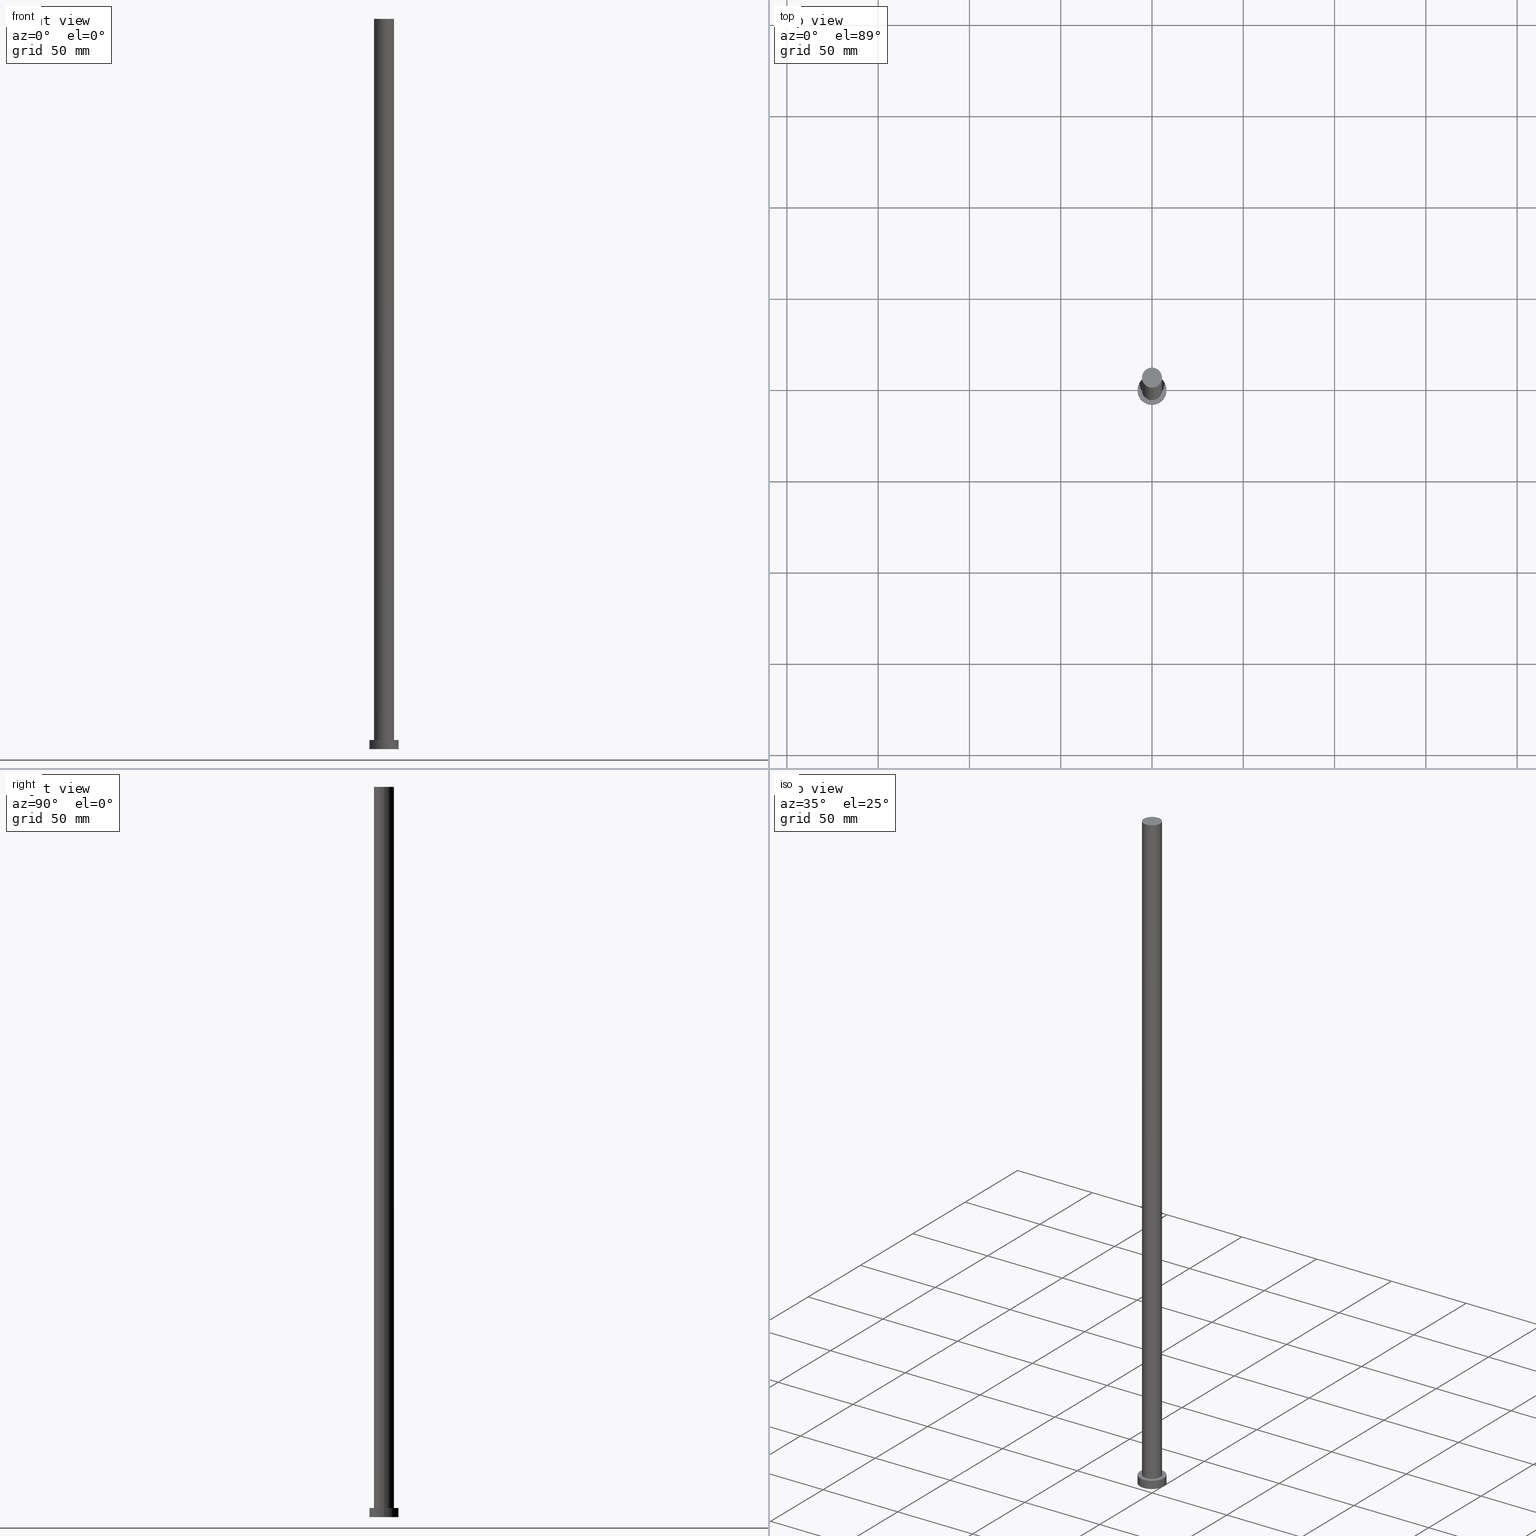
[diagram: canonical four-view strip — front | top / right | iso, engineering-drawing reading convention]
A machine part, canonical four-view strip (front | top / right | iso — engineering-drawing reading convention). The complete STEP part file that produces these views, byte-faithful:
ISO-10303-21;
HEADER;
FILE_DESCRIPTION (( 'STEP AP203' ),
    '1' );
FILE_NAME ('6780.STEP',
    '2023-02-13T11:09:37',
    ( '' ),
    ( '' ),
    'SwSTEP 2.0',
    'SolidWorks 2019',
    '' );
FILE_SCHEMA (( 'CONFIG_CONTROL_DESIGN' ));
ENDSEC;

DATA;
#1 = SHAPE_DEFINITION_REPRESENTATION ( #113, #229 ) ;
#2 = EDGE_CURVE ( 'NONE', #168, #225, #170, .T. ) ;
#3 = CARTESIAN_POINT ( 'NONE',  ( -8.000000000000000000, 0.000000000000000000, 0.000000000000000000 ) ) ;
#4 = ADVANCED_FACE ( 'NONE', ( #145 ), #27, .F. ) ;
#5 = AXIS2_PLACEMENT_3D ( 'NONE', #32, #247, #181 ) ;
#6 = CARTESIAN_POINT ( 'NONE',  ( 0.000000000000000000, 0.000000000000000000, 5.000000000000000000 ) ) ;
#7 = DIRECTION ( 'NONE',  ( -1.000000000000000000, 0.000000000000000000, 0.000000000000000000 ) ) ;
#8 = CLOSED_SHELL ( 'NONE', ( #121, #240, #110, #51, #4, #250, #236 ) ) ;
#9 = AXIS2_PLACEMENT_3D ( 'NONE', #92, #136, #30 ) ;
#10 = CC_DESIGN_PERSON_AND_ORGANIZATION_ASSIGNMENT ( #217, #177, ( #69 ) ) ;
#11 = EDGE_LOOP ( 'NONE', ( #48, #232, #163, #193 ) ) ;
#12 = COORDINATED_UNIVERSAL_TIME_OFFSET ( 1, 0, .AHEAD. ) ;
#13 = MANIFOLD_SOLID_BREP ( 'P�idat vysunut�m3', #8 ) ;
#14 = VERTEX_POINT ( 'NONE', #224 ) ;
#15 = DATE_TIME_ROLE ( 'classification_date' ) ;
#16 = DATE_AND_TIME ( #55, #146 ) ;
#17 = CARTESIAN_POINT ( 'NONE',  ( 8.000000000000000000, 9.797174393178825657E-16, 5.000000000000000000 ) ) ;
#18 = APPROVAL_ROLE ( '' ) ;
#19 = CARTESIAN_POINT ( 'NONE',  ( -5.500000000000000000, 0.000000000000000000, 400.0000000000000000 ) ) ;
#20 = APPROVAL ( #142, 'NEUR�EN�' ) ;
#21 = DIRECTION ( 'NONE',  ( 0.000000000000000000, 0.000000000000000000, 1.000000000000000000 ) ) ;
#22 = COORDINATED_UNIVERSAL_TIME_OFFSET ( 1, 0, .AHEAD. ) ;
#23 = CARTESIAN_POINT ( 'NONE',  ( 0.000000000000000000, 0.000000000000000000, 400.0000000000000000 ) ) ;
#24 = ORIENTED_EDGE ( 'NONE', *, *, #29, .F. ) ;
#25 = EDGE_CURVE ( 'NONE', #225, #168, #71, .T. ) ;
#26 = AXIS2_PLACEMENT_3D ( 'NONE', #194, #169, #133 ) ;
#27 = PLANE ( 'NONE',  #127 ) ;
#28 = DIRECTION ( 'NONE',  ( 1.000000000000000000, 0.000000000000000000, 0.000000000000000000 ) ) ;
#29 = EDGE_CURVE ( 'NONE', #34, #213, #74, .T. ) ;
#30 = DIRECTION ( 'NONE',  ( 1.000000000000000000, 0.000000000000000000, 0.000000000000000000 ) ) ;
#31 = CARTESIAN_POINT ( 'NONE',  ( 0.000000000000000000, 0.000000000000000000, 400.0000000000000000 ) ) ;
#32 = CARTESIAN_POINT ( 'NONE',  ( 0.000000000000000000, 0.000000000000000000, 0.000000000000000000 ) ) ;
#33 = PERSON_AND_ORGANIZATION_ROLE ( 'design_supplier' ) ;
#34 = VERTEX_POINT ( 'NONE', #3 ) ;
#35 = APPLICATION_PROTOCOL_DEFINITION ( 'international standard', 'config_control_design', 1994, #109 ) ;
#36 = PERSON_AND_ORGANIZATION ( #153, #175 ) ;
#37 = VERTEX_POINT ( 'NONE', #172 ) ;
#38 = PERSON_AND_ORGANIZATION ( #153, #175 ) ;
#39 = ORIENTED_EDGE ( 'NONE', *, *, #94, .F. ) ;
#40 = APPROVAL_DATE_TIME ( #161, #59 ) ;
#41 = CC_DESIGN_SECURITY_CLASSIFICATION ( #237, ( #208 ) ) ;
#42 = CIRCLE ( 'NONE', #197, 8.000000000000000000 ) ;
#43 =( NAMED_UNIT ( * ) PLANE_ANGLE_UNIT ( ) SI_UNIT ( $, .RADIAN. ) );
#44 = EDGE_CURVE ( 'NONE', #254, #165, #242, .T. ) ;
#45 = CARTESIAN_POINT ( 'NONE',  ( -8.000000000000000000, 0.000000000000000000, 5.000000000000000000 ) ) ;
#46 = ORIENTED_EDGE ( 'NONE', *, *, #2, .F. ) ;
#47 = FACE_OUTER_BOUND ( 'NONE', #11, .T. ) ;
#48 = ORIENTED_EDGE ( 'NONE', *, *, #211, .F. ) ;
#49 = DIRECTION ( 'NONE',  ( 0.000000000000000000, 0.000000000000000000, 1.000000000000000000 ) ) ;
#50 = DIRECTION ( 'NONE',  ( -0.000000000000000000, -0.000000000000000000, -1.000000000000000000 ) ) ;
#51 = ADVANCED_FACE ( 'NONE', ( #241, #231 ), #243, .T. ) ;
#52 = DIRECTION ( 'NONE',  ( 1.000000000000000000, 0.000000000000000000, 0.000000000000000000 ) ) ;
#53 = CYLINDRICAL_SURFACE ( 'NONE', #235, 5.500000000000000000 ) ;
#54 = VECTOR ( 'NONE', #103, 1000.000000000000000 ) ;
#55 = CALENDAR_DATE ( 2023, 13, 2 ) ;
#56 = CYLINDRICAL_SURFACE ( 'NONE', #135, 8.000000000000000000 ) ;
#57 = DATE_TIME_ROLE ( 'creation_date' ) ;
#58 = VECTOR ( 'NONE', #148, 1000.000000000000000 ) ;
#59 = APPROVAL ( #164, 'NEUR�EN�' ) ;
#60 = DIRECTION ( 'NONE',  ( 1.000000000000000000, 0.000000000000000000, 0.000000000000000000 ) ) ;
#61 = DIRECTION ( 'NONE',  ( 0.000000000000000000, 0.000000000000000000, 1.000000000000000000 ) ) ;
#62 = APPROVAL_PERSON_ORGANIZATION ( #120, #20, #18 ) ;
#63 = CARTESIAN_POINT ( 'NONE',  ( 0.000000000000000000, 0.000000000000000000, 5.000000000000000000 ) ) ;
#64 = DIRECTION ( 'NONE',  ( -0.000000000000000000, -0.000000000000000000, -1.000000000000000000 ) ) ;
#65 = CARTESIAN_POINT ( 'NONE',  ( 0.000000000000000000, 0.000000000000000000, 400.0000000000000000 ) ) ;
#66 = DIRECTION ( 'NONE',  ( 0.000000000000000000, 0.000000000000000000, 1.000000000000000000 ) ) ;
#67 = CC_DESIGN_APPROVAL ( #59, ( #237 ) ) ;
#68 = DIRECTION ( 'NONE',  ( 0.000000000000000000, 0.000000000000000000, 1.000000000000000000 ) ) ;
#69 = PRODUCT_DEFINITION ( 'NEZN�M�', '', #208, #201 ) ;
#70 = LINE ( 'NONE', #198, #58 ) ;
#71 = CIRCLE ( 'NONE', #218, 5.500000000000000000 ) ;
#72 = APPROVAL_STATUS ( 'not_yet_approved' ) ;
#73 = FACE_OUTER_BOUND ( 'NONE', #207, .T. ) ;
#74 = CIRCLE ( 'NONE', #116, 8.000000000000000000 ) ;
#75 = CIRCLE ( 'NONE', #9, 5.500000000000000000 ) ;
#76 = COORDINATED_UNIVERSAL_TIME_OFFSET ( 1, 0, .AHEAD. ) ;
#77 = CARTESIAN_POINT ( 'NONE',  ( 5.500000000000000000, 6.735557395310441037E-16, 400.0000000000000000 ) ) ;
#78 = COORDINATED_UNIVERSAL_TIME_OFFSET ( 1, 0, .AHEAD. ) ;
#79 = APPROVAL_PERSON_ORGANIZATION ( #38, #131, #124 ) ;
#80 = ORIENTED_EDGE ( 'NONE', *, *, #104, .F. ) ;
#81 = CARTESIAN_POINT ( 'NONE',  ( -8.000000000000000000, 0.000000000000000000, 5.000000000000000000 ) ) ;
#82 = ORIENTED_EDGE ( 'NONE', *, *, #44, .F. ) ;
#83 = CC_DESIGN_APPROVAL ( #20, ( #69 ) ) ;
#84 = ORIENTED_EDGE ( 'NONE', *, *, #190, .T. ) ;
#85 = FACE_OUTER_BOUND ( 'NONE', #140, .T. ) ;
#86 = ORIENTED_EDGE ( 'NONE', *, *, #94, .T. ) ;
#87 = APPLICATION_CONTEXT ( 'configuration controlled 3d designs of mechanical parts and assemblies' ) ;
#88 = DIRECTION ( 'NONE',  ( 0.000000000000000000, 0.000000000000000000, 1.000000000000000000 ) ) ;
#89 = EDGE_CURVE ( 'NONE', #225, #37, #70, .T. ) ;
#90 = DIRECTION ( 'NONE',  ( 0.000000000000000000, 0.000000000000000000, 1.000000000000000000 ) ) ;
#91 = LINE ( 'NONE', #156, #212 ) ;
#92 = CARTESIAN_POINT ( 'NONE',  ( 0.000000000000000000, 0.000000000000000000, 5.000000000000000000 ) ) ;
#93 = ORIENTED_EDGE ( 'NONE', *, *, #2, .T. ) ;
#94 = EDGE_CURVE ( 'NONE', #14, #37, #245, .T. ) ;
#95 = CALENDAR_DATE ( 2023, 13, 2 ) ;
#96 = EDGE_LOOP ( 'NONE', ( #24, #239 ) ) ;
#97 =( NAMED_UNIT ( * ) SI_UNIT ( $, .STERADIAN. ) SOLID_ANGLE_UNIT ( ) );
#98 = DIRECTION ( 'NONE',  ( -0.000000000000000000, -0.000000000000000000, -1.000000000000000000 ) ) ;
#99 = UNCERTAINTY_MEASURE_WITH_UNIT (LENGTH_MEASURE( 1.000000000000000082E-05 ), #114, 'distance_accuracy_value', 'NONE');
#100 = ORIENTED_EDGE ( 'NONE', *, *, #223, .T. ) ;
#101 = AXIS2_PLACEMENT_3D ( 'NONE', #244, #68, #147 ) ;
#102 = DATE_AND_TIME ( #202, #128 ) ;
#103 = DIRECTION ( 'NONE',  ( -0.000000000000000000, -0.000000000000000000, -1.000000000000000000 ) ) ;
#104 = EDGE_CURVE ( 'NONE', #37, #14, #75, .T. ) ;
#105 = ORIENTED_EDGE ( 'NONE', *, *, #211, .T. ) ;
#106 = PERSON_AND_ORGANIZATION_ROLE ( 'classification_officer' ) ;
#107 = CARTESIAN_POINT ( 'NONE',  ( 0.000000000000000000, 0.000000000000000000, 5.000000000000000000 ) ) ;
#108 = ORIENTED_EDGE ( 'NONE', *, *, #190, .F. ) ;
#109 = APPLICATION_CONTEXT ( 'configuration controlled 3d designs of mechanical parts and assemblies' ) ;
#110 = ADVANCED_FACE ( 'NONE', ( #73 ), #56, .T. ) ;
#111 = ORIENTED_EDGE ( 'NONE', *, *, #209, .F. ) ;
#112 = CARTESIAN_POINT ( 'NONE',  ( 0.000000000000000000, 0.000000000000000000, 400.0000000000000000 ) ) ;
#113 = PRODUCT_DEFINITION_SHAPE ( 'NONE', 'NONE',  #69 ) ;
#114 =( LENGTH_UNIT ( ) NAMED_UNIT ( * ) SI_UNIT ( .MILLI., .METRE. ) );
#115 = VECTOR ( 'NONE', #125, 1000.000000000000000 ) ;
#116 = AXIS2_PLACEMENT_3D ( 'NONE', #149, #49, #173 ) ;
#117 = PERSON_AND_ORGANIZATION_ROLE ( 'design_owner' ) ;
#118 = DATE_AND_TIME ( #95, #230 ) ;
#119 = ORIENTED_EDGE ( 'NONE', *, *, #209, .T. ) ;
#120 = PERSON_AND_ORGANIZATION ( #153, #175 ) ;
#121 = ADVANCED_FACE ( 'NONE', ( #179 ), #53, .T. ) ;
#122 = ORIENTED_EDGE ( 'NONE', *, *, #44, .T. ) ;
#123 = LOCAL_TIME ( 12, 9, 37.00000000000000000, #76 ) ;
#124 = APPROVAL_ROLE ( '' ) ;
#125 = DIRECTION ( 'NONE',  ( -0.000000000000000000, -0.000000000000000000, -1.000000000000000000 ) ) ;
#126 = EDGE_LOOP ( 'NONE', ( #46, #105, #86, #252 ) ) ;
#127 = AXIS2_PLACEMENT_3D ( 'NONE', #130, #21, #189 ) ;
#128 = LOCAL_TIME ( 12, 9, 37.00000000000000000, #12 ) ;
#129 = APPROVAL_ROLE ( '' ) ;
#130 = CARTESIAN_POINT ( 'NONE',  ( 0.000000000000000000, 0.000000000000000000, 0.000000000000000000 ) ) ;
#131 = APPROVAL ( #72, 'NEUR�EN�' ) ;
#132 = AXIS2_PLACEMENT_3D ( 'NONE', #63, #64, #171 ) ;
#133 = DIRECTION ( 'NONE',  ( -1.000000000000000000, 0.000000000000000000, 0.000000000000000000 ) ) ;
#134 = DIRECTION ( 'NONE',  ( 1.000000000000000000, 0.000000000000000000, 0.000000000000000000 ) ) ;
#135 = AXIS2_PLACEMENT_3D ( 'NONE', #200, #98, #192 ) ;
#136 = DIRECTION ( 'NONE',  ( 0.000000000000000000, 0.000000000000000000, 1.000000000000000000 ) ) ;
#137 = PRODUCT_RELATED_PRODUCT_CATEGORY ( 'detail', '', ( #196 ) ) ;
#138 = COORDINATED_UNIVERSAL_TIME_OFFSET ( 1, 0, .AHEAD. ) ;
#139 = AXIS2_PLACEMENT_3D ( 'NONE', #6, #90, #52 ) ;
#140 = EDGE_LOOP ( 'NONE', ( #111, #246, #100, #108 ) ) ;
#141 = LINE ( 'NONE', #81, #54 ) ;
#142 = APPROVAL_STATUS ( 'not_yet_approved' ) ;
#143 = EDGE_CURVE ( 'NONE', #165, #213, #91, .T. ) ;
#144 =( GEOMETRIC_REPRESENTATION_CONTEXT ( 3 ) GLOBAL_UNCERTAINTY_ASSIGNED_CONTEXT ( ( #99 ) ) GLOBAL_UNIT_ASSIGNED_CONTEXT ( ( #114, #43, #97 ) ) REPRESENTATION_CONTEXT ( 'NONE', 'WORKASPACE' ) );
#145 = FACE_OUTER_BOUND ( 'NONE', #96, .T. ) ;
#146 = LOCAL_TIME ( 12, 9, 37.00000000000000000, #78 ) ;
#147 = DIRECTION ( 'NONE',  ( 1.000000000000000000, 0.000000000000000000, -0.000000000000000000 ) ) ;
#148 = DIRECTION ( 'NONE',  ( -0.000000000000000000, -0.000000000000000000, -1.000000000000000000 ) ) ;
#149 = CARTESIAN_POINT ( 'NONE',  ( 0.000000000000000000, 0.000000000000000000, 0.000000000000000000 ) ) ;
#150 = LOCAL_TIME ( 12, 9, 37.00000000000000000, #22 ) ;
#151 = CC_DESIGN_PERSON_AND_ORGANIZATION_ASSIGNMENT ( #215, #106, ( #237 ) ) ;
#152 = APPLICATION_PROTOCOL_DEFINITION ( 'international standard', 'config_control_design', 1994, #87 ) ;
#153 = PERSON ( 'NEUR�EN�', 'NEUR�EN�', 'NEUR�EN�', ('NEUR�EN�'), ('NEUR�EN�'), ('NEUR�EN�') ) ;
#154 = AXIS2_PLACEMENT_3D ( 'NONE', #65, #61, #60 ) ;
#155 = APPROVAL_PERSON_ORGANIZATION ( #36, #59, #129 ) ;
#156 = CARTESIAN_POINT ( 'NONE',  ( 8.000000000000000000, 9.797174393178825657E-16, 5.000000000000000000 ) ) ;
#157 = CALENDAR_DATE ( 2023, 13, 2 ) ;
#158 = DIRECTION ( 'NONE',  ( 1.000000000000000000, 0.000000000000000000, 0.000000000000000000 ) ) ;
#159 = PERSON_AND_ORGANIZATION ( #153, #175 ) ;
#160 = AXIS2_PLACEMENT_3D ( 'NONE', #183, #253, #205 ) ;
#161 = DATE_AND_TIME ( #221, #150 ) ;
#162 = CC_DESIGN_PERSON_AND_ORGANIZATION_ASSIGNMENT ( #214, #117, ( #196 ) ) ;
#163 = ORIENTED_EDGE ( 'NONE', *, *, #89, .T. ) ;
#164 = APPROVAL_STATUS ( 'not_yet_approved' ) ;
#165 = VERTEX_POINT ( 'NONE', #17 ) ;
#166 = CYLINDRICAL_SURFACE ( 'NONE', #132, 8.000000000000000000 ) ;
#167 = ORIENTED_EDGE ( 'NONE', *, *, #25, .T. ) ;
#168 = VERTEX_POINT ( 'NONE', #77 ) ;
#169 = DIRECTION ( 'NONE',  ( -0.000000000000000000, -0.000000000000000000, -1.000000000000000000 ) ) ;
#170 = CIRCLE ( 'NONE', #154, 5.500000000000000000 ) ;
#171 = DIRECTION ( 'NONE',  ( -1.000000000000000000, 0.000000000000000000, 0.000000000000000000 ) ) ;
#172 = CARTESIAN_POINT ( 'NONE',  ( -5.500000000000000000, 0.000000000000000000, 5.000000000000000000 ) ) ;
#173 = DIRECTION ( 'NONE',  ( 1.000000000000000000, 0.000000000000000000, 0.000000000000000000 ) ) ;
#174 = CC_DESIGN_DATE_AND_TIME_ASSIGNMENT ( #233, #57, ( #69 ) ) ;
#175 = ORGANIZATION ( 'NEUR�EN�', 'NEUR�EN�', '' ) ;
#176 = EDGE_LOOP ( 'NONE', ( #167, #93 ) ) ;
#177 = PERSON_AND_ORGANIZATION_ROLE ( 'creator' ) ;
#178 = APPROVAL_DATE_TIME ( #102, #20 ) ;
#179 = FACE_OUTER_BOUND ( 'NONE', #126, .T. ) ;
#180 = PERSON_AND_ORGANIZATION ( #153, #175 ) ;
#181 = DIRECTION ( 'NONE',  ( 1.000000000000000000, 0.000000000000000000, 0.000000000000000000 ) ) ;
#182 = APPROVAL_DATE_TIME ( #16, #131 ) ;
#183 = CARTESIAN_POINT ( 'NONE',  ( 0.000000000000000000, 0.000000000000000000, 0.000000000000000000 ) ) ;
#184 = CC_DESIGN_DATE_AND_TIME_ASSIGNMENT ( #118, #15, ( #237 ) ) ;
#185 = FACE_OUTER_BOUND ( 'NONE', #176, .T. ) ;
#186 = AXIS2_PLACEMENT_3D ( 'NONE', #228, #210, #134 ) ;
#187 = CC_DESIGN_APPROVAL ( #131, ( #208 ) ) ;
#188 = DIRECTION ( 'NONE',  ( -0.000000000000000000, -0.000000000000000000, -1.000000000000000000 ) ) ;
#189 = DIRECTION ( 'NONE',  ( 1.000000000000000000, 0.000000000000000000, -0.000000000000000000 ) ) ;
#190 = EDGE_CURVE ( 'NONE', #254, #34, #141, .T. ) ;
#191 = EDGE_LOOP ( 'NONE', ( #80, #39 ) ) ;
#192 = DIRECTION ( 'NONE',  ( -1.000000000000000000, 0.000000000000000000, 0.000000000000000000 ) ) ;
#193 = ORIENTED_EDGE ( 'NONE', *, *, #104, .T. ) ;
#194 = CARTESIAN_POINT ( 'NONE',  ( 0.000000000000000000, 0.000000000000000000, 400.0000000000000000 ) ) ;
#195 = CC_DESIGN_PERSON_AND_ORGANIZATION_ASSIGNMENT ( #159, #204, ( #208 ) ) ;
#196 = PRODUCT ( '6780', '6780', '', ( #251 ) ) ;
#197 = AXIS2_PLACEMENT_3D ( 'NONE', #107, #216, #158 ) ;
#198 = CARTESIAN_POINT ( 'NONE',  ( -5.500000000000000000, 0.000000000000000000, 400.0000000000000000 ) ) ;
#199 = SECURITY_CLASSIFICATION_LEVEL ( 'unclassified' ) ;
#200 = CARTESIAN_POINT ( 'NONE',  ( 0.000000000000000000, 0.000000000000000000, 5.000000000000000000 ) ) ;
#201 = DESIGN_CONTEXT ( 'detailed design', #109, 'design' ) ;
#202 = CALENDAR_DATE ( 2023, 13, 2 ) ;
#203 = CC_DESIGN_PERSON_AND_ORGANIZATION_ASSIGNMENT ( #180, #33, ( #208 ) ) ;
#204 = PERSON_AND_ORGANIZATION_ROLE ( 'creator' ) ;
#205 = DIRECTION ( 'NONE',  ( 1.000000000000000000, 0.000000000000000000, 0.000000000000000000 ) ) ;
#206 = CIRCLE ( 'NONE', #160, 8.000000000000000000 ) ;
#207 = EDGE_LOOP ( 'NONE', ( #222, #82, #84, #249 ) ) ;
#208 = PRODUCT_DEFINITION_FORMATION_WITH_SPECIFIED_SOURCE ( 'LIBOVOLN�', '', #196, .NOT_KNOWN. ) ;
#209 = EDGE_CURVE ( 'NONE', #165, #254, #42, .T. ) ;
#210 = DIRECTION ( 'NONE',  ( 0.000000000000000000, 0.000000000000000000, 1.000000000000000000 ) ) ;
#211 = EDGE_CURVE ( 'NONE', #168, #14, #234, .T. ) ;
#212 = VECTOR ( 'NONE', #188, 1000.000000000000000 ) ;
#213 = VERTEX_POINT ( 'NONE', #220 ) ;
#214 = PERSON_AND_ORGANIZATION ( #153, #175 ) ;
#215 = PERSON_AND_ORGANIZATION ( #153, #175 ) ;
#216 = DIRECTION ( 'NONE',  ( 0.000000000000000000, 0.000000000000000000, 1.000000000000000000 ) ) ;
#217 = PERSON_AND_ORGANIZATION ( #153, #175 ) ;
#218 = AXIS2_PLACEMENT_3D ( 'NONE', #112, #88, #28 ) ;
#219 = CARTESIAN_POINT ( 'NONE',  ( 5.500000000000000000, 6.735557395310441037E-16, 400.0000000000000000 ) ) ;
#220 = CARTESIAN_POINT ( 'NONE',  ( 8.000000000000000000, 9.797174393178825657E-16, 0.000000000000000000 ) ) ;
#221 = CALENDAR_DATE ( 2023, 13, 2 ) ;
#222 = ORIENTED_EDGE ( 'NONE', *, *, #143, .F. ) ;
#223 = EDGE_CURVE ( 'NONE', #213, #34, #206, .T. ) ;
#224 = CARTESIAN_POINT ( 'NONE',  ( 5.500000000000000000, 6.735557395310441037E-16, 5.000000000000000000 ) ) ;
#225 = VERTEX_POINT ( 'NONE', #19 ) ;
#226 = CYLINDRICAL_SURFACE ( 'NONE', #26, 5.500000000000000000 ) ;
#227 = DIRECTION ( 'NONE',  ( 1.000000000000000000, 0.000000000000000000, -0.000000000000000000 ) ) ;
#228 = CARTESIAN_POINT ( 'NONE',  ( 0.000000000000000000, 0.000000000000000000, 5.000000000000000000 ) ) ;
#229 = ADVANCED_BREP_SHAPE_REPRESENTATION ( '6780', ( #13, #5 ), #144 ) ;
#230 = LOCAL_TIME ( 12, 9, 37.00000000000000000, #138 ) ;
#231 = FACE_OUTER_BOUND ( 'NONE', #255, .T. ) ;
#232 = ORIENTED_EDGE ( 'NONE', *, *, #25, .F. ) ;
#233 = DATE_AND_TIME ( #157, #123 ) ;
#234 = LINE ( 'NONE', #219, #115 ) ;
#235 = AXIS2_PLACEMENT_3D ( 'NONE', #31, #50, #7 ) ;
#236 = ADVANCED_FACE ( 'NONE', ( #185 ), #238, .T. ) ;
#237 = SECURITY_CLASSIFICATION ( '', '', #199 ) ;
#238 = PLANE ( 'NONE',  #248 ) ;
#239 = ORIENTED_EDGE ( 'NONE', *, *, #223, .F. ) ;
#240 = ADVANCED_FACE ( 'NONE', ( #85 ), #166, .T. ) ;
#241 = FACE_BOUND ( 'NONE', #191, .T. ) ;
#242 = CIRCLE ( 'NONE', #186, 8.000000000000000000 ) ;
#243 = PLANE ( 'NONE',  #101 ) ;
#244 = CARTESIAN_POINT ( 'NONE',  ( 0.000000000000000000, 0.000000000000000000, 5.000000000000000000 ) ) ;
#245 = CIRCLE ( 'NONE', #139, 5.500000000000000000 ) ;
#246 = ORIENTED_EDGE ( 'NONE', *, *, #143, .T. ) ;
#247 = DIRECTION ( 'NONE',  ( 0.000000000000000000, 0.000000000000000000, 1.000000000000000000 ) ) ;
#248 = AXIS2_PLACEMENT_3D ( 'NONE', #23, #66, #227 ) ;
#249 = ORIENTED_EDGE ( 'NONE', *, *, #29, .T. ) ;
#250 = ADVANCED_FACE ( 'NONE', ( #47 ), #226, .T. ) ;
#251 = MECHANICAL_CONTEXT ( 'NONE', #87, 'mechanical' ) ;
#252 = ORIENTED_EDGE ( 'NONE', *, *, #89, .F. ) ;
#253 = DIRECTION ( 'NONE',  ( 0.000000000000000000, 0.000000000000000000, 1.000000000000000000 ) ) ;
#254 = VERTEX_POINT ( 'NONE', #45 ) ;
#255 = EDGE_LOOP ( 'NONE', ( #122, #119 ) ) ;
ENDSEC;
END-ISO-10303-21;
